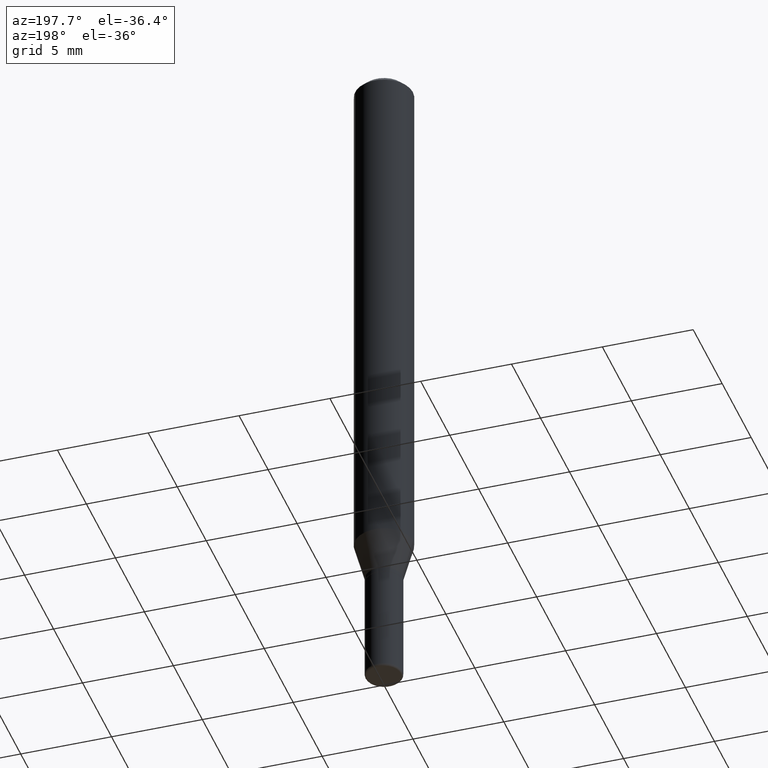
[diagram: clean part render]
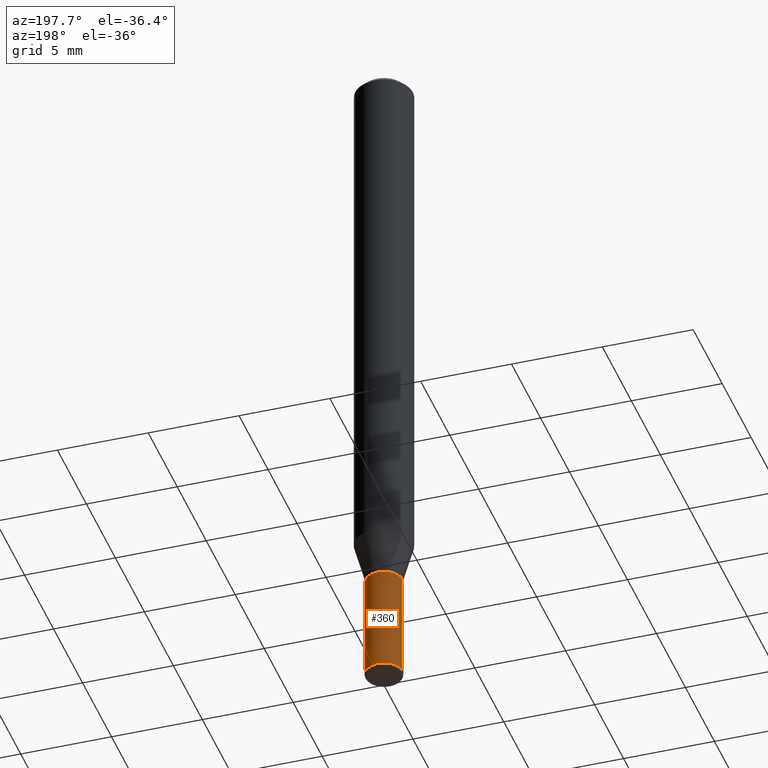
[diagram: same view with one face highlighted and labeled with its STEP entity id]
A machine part, auxiliary view. The second image highlights one B-rep face of the part: STEP entity #360.
In plain terms, the highlighted cylindrical surface (edge-blend (fillet) strip) has radius 1.016 mm, axis along (-0, 0, 1).
Its self-contained STEP definition (entity closure, byte-faithful):
#7 = CARTESIAN_POINT ( 'NONE',  ( -0.04000000000000000083, -4.525298449952393698E-15, -1.260000000000000231 ) ) ;
#29 = EDGE_CURVE ( 'NONE', #125, #159, #421, .T. ) ;
#34 = DIRECTION ( 'NONE',  ( -2.445468806185136597E-29, 3.491481338843145583E-15, 1.000000000000000000 ) ) ;
#47 = CARTESIAN_POINT ( 'NONE',  ( 0.04000000000000000083, -4.678584994049814947E-15, -1.260000000000000231 ) ) ;
#60 = EDGE_CURVE ( 'NONE', #190, #501, #123, .T. ) ;
#72 = CARTESIAN_POINT ( 'NONE',  ( -0.03999999999999995226, 2.842170943040397351E-16, -1.967574036101960057E-30 ) ) ;
#74 = EDGE_LOOP ( 'NONE', ( #227, #287, #318, #512 ) ) ;
#87 = CARTESIAN_POINT ( 'NONE',  ( 3.081290695793272291E-29, -4.399266486942364120E-15, -1.260000000000000231 ) ) ;
#110 = CARTESIAN_POINT ( 'NONE',  ( 0.000000000000000000, 0.000000000000000000, 0.000000000000000000 ) ) ;
#123 = CIRCLE ( 'NONE', #340, 0.03999999999999989675 ) ;
#125 = VERTEX_POINT ( 'NONE', #47 ) ;
#159 = VERTEX_POINT ( 'NONE', #7 ) ;
#190 = VERTEX_POINT ( 'NONE', #219 ) ;
#218 = CARTESIAN_POINT ( 'NONE',  ( -0.03999999999999989675, -4.525298449952393698E-15, -1.495000000000000329 ) ) ;
#219 = CARTESIAN_POINT ( 'NONE',  ( 0.03999999999999989675, -5.499083108677954756E-15, -1.495000000000000329 ) ) ;
#227 = ORIENTED_EDGE ( 'NONE', *, *, #60, .T. ) ;
#229 = DIRECTION ( 'NONE',  ( 1.000000000000000000, -6.982962677686266711E-15, 4.876176775795935793E-29 ) ) ;
#233 = CYLINDRICAL_SURFACE ( 'NONE', #413, 0.03999999999999995226 ) ;
#247 = CARTESIAN_POINT ( 'NONE',  ( 3.655975865246779683E-29, -5.219764601570503930E-15, -1.495000000000000329 ) ) ;
#287 = ORIENTED_EDGE ( 'NONE', *, *, #437, .T. ) ;
#289 = DIRECTION ( 'NONE',  ( -2.445468806185136597E-29, 3.491481338843145583E-15, 1.000000000000000000 ) ) ;
#303 = FACE_OUTER_BOUND ( 'NONE', #74, .T. ) ;
#310 = VECTOR ( 'NONE', #496, 39.37007874015748143 ) ;
#318 = ORIENTED_EDGE ( 'NONE', *, *, #29, .F. ) ;
#335 = EDGE_CURVE ( 'NONE', #190, #125, #492, .T. ) ;
#340 = AXIS2_PLACEMENT_3D ( 'NONE', #247, #289, #485 ) ;
#346 = DIRECTION ( 'NONE',  ( -2.445468806185136877E-29, 3.491481338843145188E-15, 1.000000000000000000 ) ) ;
#360 = ADVANCED_FACE ( 'NONE', ( #303 ), #233, .T. ) ;
#398 = DIRECTION ( 'NONE',  ( 1.000000000000000000, -6.982962677686259611E-15, 0.000000000000000000 ) ) ;
#401 = DIRECTION ( 'NONE',  ( -2.445468806185136597E-29, 3.491481338843145583E-15, 1.000000000000000000 ) ) ;
#413 = AXIS2_PLACEMENT_3D ( 'NONE', #110, #34, #229 ) ;
#415 = CARTESIAN_POINT ( 'NONE',  ( 0.03999999999999995226, -2.793185071074503332E-16, 1.950470710318371935E-30 ) ) ;
#421 = CIRCLE ( 'NONE', #487, 0.04000000000000000083 ) ;
#437 = EDGE_CURVE ( 'NONE', #501, #159, #464, .T. ) ;
#447 = VECTOR ( 'NONE', #346, 39.37007874015748143 ) ;
#464 = LINE ( 'NONE', #72, #447 ) ;
#485 = DIRECTION ( 'NONE',  ( 1.000000000000000000, -6.982962677686277755E-15, 0.000000000000000000 ) ) ;
#487 = AXIS2_PLACEMENT_3D ( 'NONE', #87, #401, #398 ) ;
#492 = LINE ( 'NONE', #415, #310 ) ;
#496 = DIRECTION ( 'NONE',  ( -2.445468806185136877E-29, 3.491481338843145188E-15, 1.000000000000000000 ) ) ;
#501 = VERTEX_POINT ( 'NONE', #218 ) ;
#512 = ORIENTED_EDGE ( 'NONE', *, *, #335, .F. ) ;